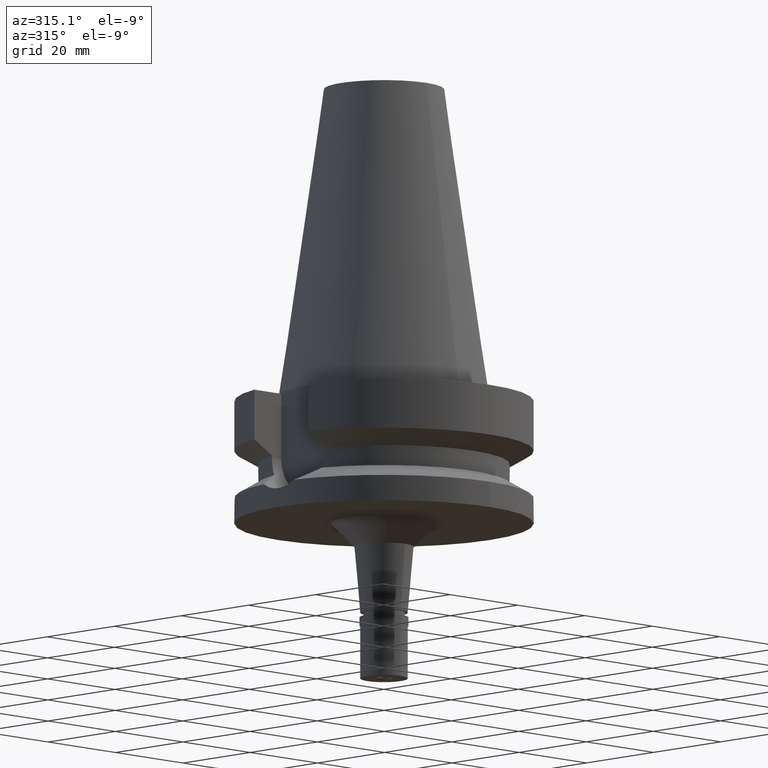
[diagram: clean part render]
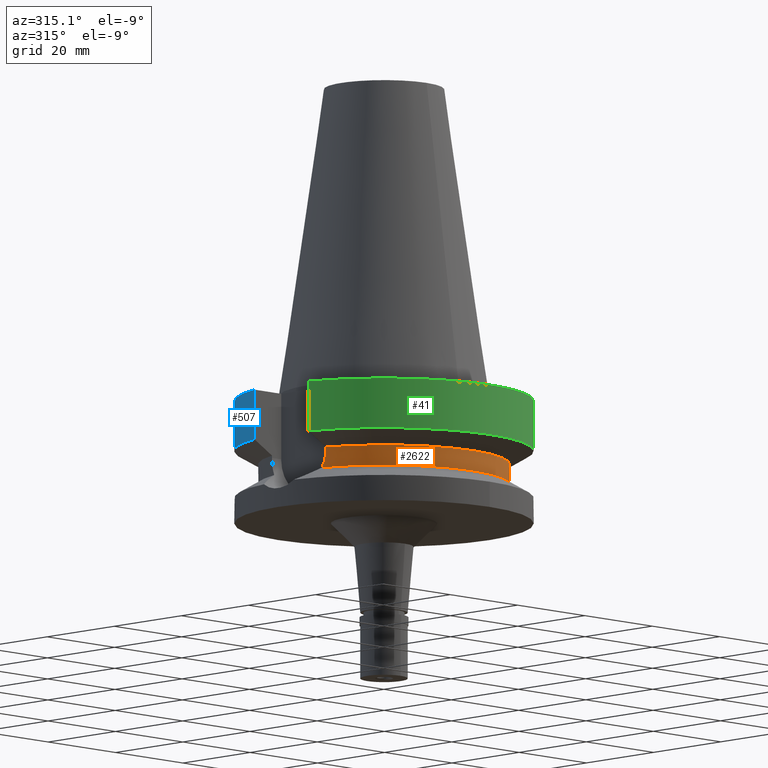
[diagram: same view with three faces highlighted in distinct colors, each labeled with its STEP entity id]
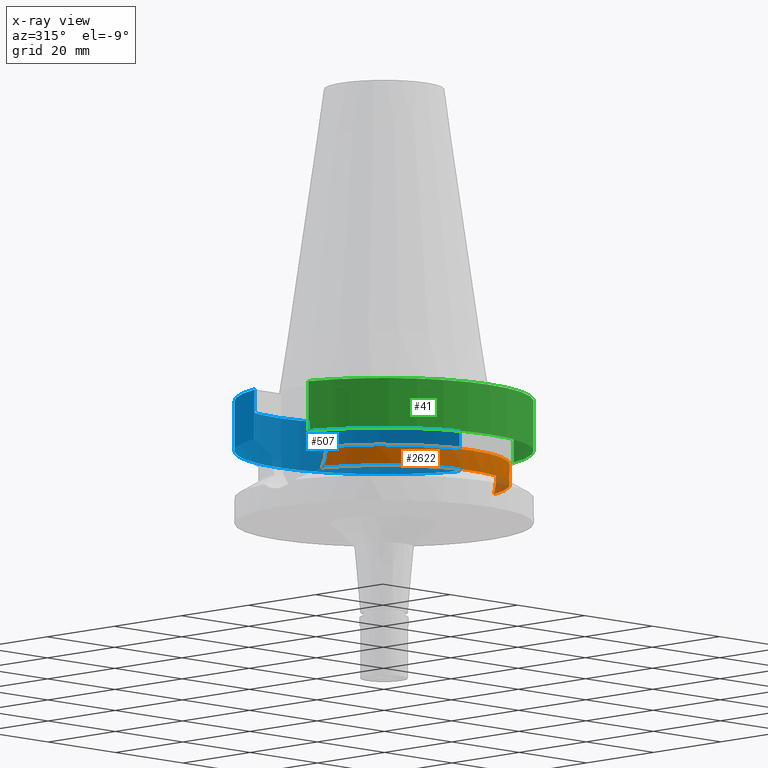
[diagram: x-ray of the same camera — body ghosted, the three highlighted faces saturated]
A machine part, auxiliary view with three faces highlighted in distinct colors.
The next image is the same camera in x-ray (body ghosted, the three faces saturated) — at least one of them is partly hidden behind the body in this view.
Their STEP definitions:

[orange] entity #2622 — the highlighted cylindrical surface (partial cylindrical patch) has radius 26.5 mm, axis along (0, 0, -1).
#70 = EDGE_CURVE ( 'NONE', #1491, #1785, #524, .T. ) ;
#82 = DIRECTION ( 'NONE',  ( 0.0000000000000000000, -1.000000000000000000, 0.0000000000000000000 ) ) ;
#154 = CARTESIAN_POINT ( 'NONE',  ( 25.24772266958000344, -8.050000000000000711, -15.26994624097755349 ) ) ;
#225 = AXIS2_PLACEMENT_3D ( 'NONE', #297, #1414, #82 ) ;
#253 = CARTESIAN_POINT ( 'NONE',  ( -25.35407699156058570, -7.708962562372580152, -17.26964265289514344 ) ) ;
#297 = CARTESIAN_POINT ( 'NONE',  ( 0.0000000000000000000, 2.100085563517999935E-14, 71.48500000000001364 ) ) ;
#409 = CARTESIAN_POINT ( 'NONE',  ( -25.27267878703948156, -7.973310748594792940, -16.24511349491563195 ) ) ;
#411 = ORIENTED_EDGE ( 'NONE', *, *, #660, .F. ) ;
#439 = EDGE_LOOP ( 'NONE', ( #1242, #1523, #2759, #411, #2555, #881 ) ) ;
#440 = CARTESIAN_POINT ( 'NONE',  ( -25.48480250143031967, -7.266743887089764264, -18.43210847756382620 ) ) ;
#457 = CARTESIAN_POINT ( 'NONE',  ( 25.24772266958000344, -8.050000000000000711, -14.94999999999999929 ) ) ;
#496 = EDGE_CURVE ( 'NONE', #2968, #2895, #2016, .T. ) ;
#524 = CIRCLE ( 'NONE', #2830, 26.50000000000000711 ) ;
#562 = CARTESIAN_POINT ( 'NONE',  ( 25.30213757442784583, -7.877637162976262708, -16.61056528398788146 ) ) ;
#633 = CARTESIAN_POINT ( 'NONE',  ( -25.34383784690667696, -7.742464100974354224, -17.15621186859764791 ) ) ;
#660 = EDGE_CURVE ( 'NONE', #1491, #2968, #1898, .T. ) ;
#698 = CARTESIAN_POINT ( 'NONE',  ( -25.39160756133994923, -7.584934398586919535, -17.65162641215484385 ) ) ;
#717 = VECTOR ( 'NONE', #2878, 1000.000000000000227 ) ;
#730 = CYLINDRICAL_SURFACE ( 'NONE', #225, 26.50000000000000000 ) ;
#766 = CARTESIAN_POINT ( 'NONE',  ( 25.24772217445000422, -8.050001552912998903, -14.45224513297999991 ) ) ;
#773 = VERTEX_POINT ( 'NONE', #1082 ) ;
#798 = CARTESIAN_POINT ( 'NONE',  ( 25.32119310062810058, -7.816055872880485644, -16.87669021872437369 ) ) ;
#872 = DIRECTION ( 'NONE',  ( 0.0000000000000000000, 0.0000000000000000000, -1.000000000000000000 ) ) ;
#881 = ORIENTED_EDGE ( 'NONE', *, *, #1126, .F. ) ;
#900 = CARTESIAN_POINT ( 'NONE',  ( -25.32840181445836336, -7.792653841590518660, -16.96926092298874877 ) ) ;
#1040 = CARTESIAN_POINT ( 'NONE',  ( 25.53175183775000079, -7.097862220092999941, -18.74774300138999905 ) ) ;
#1057 = CARTESIAN_POINT ( 'NONE',  ( 25.27268721373958726, -7.971796898703089163, -16.08126439256691498 ) ) ;
#1082 = CARTESIAN_POINT ( 'NONE',  ( -25.24772266958000344, -8.050000000000000711, -14.94999999999999929 ) ) ;
#1126 = EDGE_CURVE ( 'NONE', #773, #1785, #1153, .T. ) ;
#1153 = LINE ( 'NONE', #2064, #2006 ) ;
#1181 = B_SPLINE_CURVE_WITH_KNOTS ( 'NONE', 3,
 ( #1555, #440, #1350, #698, #2042, #253, #633, #2473, #900, #1804, #2519, #409, #2060, #2747 ),
 .UNSPECIFIED., .F., .F.,
 ( 4, 2, 2, 1, 1, 2, 2, 4 ),
 ( 0.0000000000000000000, 0.2499999999999841238, 0.3749999999999763522, 0.4374999999999725775, 0.4687499999999721889, 0.4843749999999718558, 0.4999999999999715783, 1.000000000000000000 ),
 .UNSPECIFIED. ) ;
#1217 = DIRECTION ( 'NONE',  ( 0.0000000000000000000, 0.0000000000000000000, 1.000000000000000000 ) ) ;
#1241 = CARTESIAN_POINT ( 'NONE',  ( 25.25396380561988607, -8.030903546329694720, -15.59366754601816574 ) ) ;
#1242 = ORIENTED_EDGE ( 'NONE', *, *, #2938, .F. ) ;
#1266 = CARTESIAN_POINT ( 'NONE',  ( 25.31952011347645737, -7.821476031042577048, -16.85458648997031617 ) ) ;
#1295 = CARTESIAN_POINT ( 'NONE',  ( -25.24772414535999943, -8.049995371426000190, -14.45229236698000008 ) ) ;
#1350 = CARTESIAN_POINT ( 'NONE',  ( -25.44389776528783997, -7.408340107185043877, -18.11686868422951591 ) ) ;
#1414 = DIRECTION ( 'NONE',  ( 0.0000000000000000000, 0.0000000000000000000, -1.000000000000000000 ) ) ;
#1416 = AXIS2_PLACEMENT_3D ( 'NONE', #2394, #1217, #2700 ) ;
#1461 = CARTESIAN_POINT ( 'NONE',  ( 25.28048863378946010, -7.947021833655625755, -16.24412758137958335 ) ) ;
#1491 = VERTEX_POINT ( 'NONE', #2741 ) ;
#1523 = ORIENTED_EDGE ( 'NONE', *, *, #2239, .T. ) ;
#1555 = CARTESIAN_POINT ( 'NONE',  ( -25.53175183775000079, -7.097862220092999941, -18.74774300138999905 ) ) ;
#1660 = CARTESIAN_POINT ( 'NONE',  ( 25.31649706320713733, -7.831262302060541636, -16.81393877535621328 ) ) ;
#1686 = CARTESIAN_POINT ( 'NONE',  ( 25.36815874783960467, -7.663791245765212423, -17.48814129335194067 ) ) ;
#1689 = CARTESIAN_POINT ( 'NONE',  ( 25.29453118987922267, -7.902064242066239252, -16.48842005630119445 ) ) ;
#1785 = VERTEX_POINT ( 'NONE', #1295 ) ;
#1804 = CARTESIAN_POINT ( 'NONE',  ( -25.32546100062923244, -7.802196480338689177, -16.93206928540737621 ) ) ;
#1898 = LINE ( 'NONE', #766, #717 ) ;
#2001 = DIRECTION ( 'NONE',  ( 0.9527442516822307583, -0.3037735849057093818, 0.0000000000000000000 ) ) ;
#2006 = VECTOR ( 'NONE', #2047, 1000.000000000000000 ) ;
#2016 = B_SPLINE_CURVE_WITH_KNOTS ( 'NONE', 3,
 ( #2219, #154, #1241, #1057, #1461, #1689, #562, #2891, #1660, #1266, #798, #1686, #2414, #1040 ),
 .UNSPECIFIED., .F., .F.,
 ( 4, 2, 2, 1, 1, 2, 2, 4 ),
 ( 0.0000000000000000000, 0.2500000000000033862, 0.3750000000000043299, 0.4375000000000048295, 0.4687500000000036637, 0.4843750000000031641, 0.5000000000000026645, 1.000000000000000000 ),
 .UNSPECIFIED. ) ;
#2042 = CARTESIAN_POINT ( 'NONE',  ( -25.37568864340162733, -7.637841086874976426, -17.49779646604959638 ) ) ;
#2047 = DIRECTION ( 'NONE',  ( -2.965147155132884913E-06, 9.299783980819640116E-06, 0.9999999999523609961 ) ) ;
#2060 = CARTESIAN_POINT ( 'NONE',  ( -25.24772266957999989, -8.049999999999979394, -15.58990582805522784 ) ) ;
#2064 = CARTESIAN_POINT ( 'NONE',  ( -25.24772266958000344, -8.050000000000000711, -14.94999999999999929 ) ) ;
#2112 = CARTESIAN_POINT ( 'NONE',  ( -25.53175183775000079, -7.097862220092999941, -18.74774300138999905 ) ) ;
#2219 = CARTESIAN_POINT ( 'NONE',  ( 25.24772266958000344, -8.050000000000000711, -14.94999999999999929 ) ) ;
#2239 = EDGE_CURVE ( 'NONE', #2571, #2895, #2722, .T. ) ;
#2273 = CARTESIAN_POINT ( 'NONE',  ( 0.0000000000000000000, 1.065333950388000029E-14, -14.45225699861000024 ) ) ;
#2347 = FACE_OUTER_BOUND ( 'NONE', #439, .T. ) ;
#2394 = CARTESIAN_POINT ( 'NONE',  ( 0.0000000000000000000, 0.0000000000000000000, -18.74774300138999905 ) ) ;
#2414 = CARTESIAN_POINT ( 'NONE',  ( 25.43787059307001641, -7.435562863904584319, -18.11659111971998115 ) ) ;
#2473 = CARTESIAN_POINT ( 'NONE',  ( -25.33288387036036582, -7.778102131033523214, -17.02514599129639095 ) ) ;
#2519 = CARTESIAN_POINT ( 'NONE',  ( -25.32415077929965719, -7.806445795312396463, -16.91528421260447601 ) ) ;
#2555 = ORIENTED_EDGE ( 'NONE', *, *, #70, .T. ) ;
#2571 = VERTEX_POINT ( 'NONE', #2112 ) ;
#2622 = ADVANCED_FACE ( 'NONE', ( #2347 ), #730, .T. ) ;
#2700 = DIRECTION ( 'NONE',  ( -0.9634623335000935818, -0.2678438573619981722, 0.0000000000000000000 ) ) ;
#2722 = CIRCLE ( 'NONE', #1416, 26.49999999999998224 ) ;
#2741 = CARTESIAN_POINT ( 'NONE',  ( 25.24772266958000344, -8.050000000000000711, -14.45225699861000024 ) ) ;
#2747 = CARTESIAN_POINT ( 'NONE',  ( -25.24772266958000344, -8.050000000000000711, -14.94999999999999929 ) ) ;
#2759 = ORIENTED_EDGE ( 'NONE', *, *, #496, .F. ) ;
#2830 = AXIS2_PLACEMENT_3D ( 'NONE', #2273, #872, #2001 ) ;
#2878 = DIRECTION ( 'NONE',  ( 9.947298043668392670E-07, 3.119835698421120934E-06, -0.9999999999946385110 ) ) ;
#2891 = CARTESIAN_POINT ( 'NONE',  ( 25.31203562611612057, -7.845693926034295274, -16.75295273484678660 ) ) ;
#2895 = VERTEX_POINT ( 'NONE', #2970 ) ;
#2938 = EDGE_CURVE ( 'NONE', #2571, #773, #1181, .T. ) ;
#2968 = VERTEX_POINT ( 'NONE', #457 ) ;
#2970 = CARTESIAN_POINT ( 'NONE',  ( 25.53175183775000079, -7.097862220092999941, -18.74774300138999905 ) ) ;

[blue] entity #507 — the highlighted cylindrical surface (partial cylindrical patch) has radius 31.5 mm, axis along (0, 0, -1).
#136 = DIRECTION ( 'NONE',  ( 0.0000000000000000000, 1.000000000000000000, 0.0000000000000000000 ) ) ;
#140 = FACE_OUTER_BOUND ( 'NONE', #1224, .T. ) ;
#166 = VERTEX_POINT ( 'NONE', #655 ) ;
#261 = EDGE_CURVE ( 'NONE', #1161, #1903, #2048, .T. ) ;
#288 = VECTOR ( 'NONE', #2302, 1000.000000000000000 ) ;
#347 = CYLINDRICAL_SURFACE ( 'NONE', #1801, 31.50000000000000000 ) ;
#356 = ORIENTED_EDGE ( 'NONE', *, *, #1495, .F. ) ;
#498 = LINE ( 'NONE', #678, #1210 ) ;
#507 = ADVANCED_FACE ( 'NONE', ( #140 ), #347, .T. ) ;
#530 = CARTESIAN_POINT ( 'NONE',  ( 0.0000000000000000000, 2.100085563517999935E-14, 71.48500000000001364 ) ) ;
#655 = CARTESIAN_POINT ( 'NONE',  ( -30.45402162036999982, 8.050004170549000193, -11.56546808615000010 ) ) ;
#678 = CARTESIAN_POINT ( 'NONE',  ( -30.45402272279000044, 8.050000000000000711, -1.000000000000000000 ) ) ;
#838 = CIRCLE ( 'NONE', #2861, 31.50000000000000000 ) ;
#1120 = VERTEX_POINT ( 'NONE', #1388 ) ;
#1132 = DIRECTION ( 'NONE',  ( 0.0000000000000000000, 0.0000000000000000000, 1.000000000000000000 ) ) ;
#1161 = VERTEX_POINT ( 'NONE', #1167 ) ;
#1167 = CARTESIAN_POINT ( 'NONE',  ( 30.45402291803999972, 8.049999261355999636, -11.56551230548000042 ) ) ;
#1210 = VECTOR ( 'NONE', #2773, 1000.000000000000000 ) ;
#1224 = EDGE_LOOP ( 'NONE', ( #356, #2253, #2451, #1315 ) ) ;
#1231 = DIRECTION ( 'NONE',  ( 0.0000000000000000000, 0.0000000000000000000, -1.000000000000000000 ) ) ;
#1246 = CARTESIAN_POINT ( 'NONE',  ( 0.0000000000000000000, 2.100085563517999935E-14, -1.000000000000000000 ) ) ;
#1315 = ORIENTED_EDGE ( 'NONE', *, *, #1936, .T. ) ;
#1361 = AXIS2_PLACEMENT_3D ( 'NONE', #1816, #1132, #2120 ) ;
#1372 = CARTESIAN_POINT ( 'NONE',  ( 30.45402291803999972, 8.049999261355999636, -11.56551230548000042 ) ) ;
#1388 = CARTESIAN_POINT ( 'NONE',  ( -30.45402272279000044, 8.050000000000000711, -1.000000000000000000 ) ) ;
#1459 = CIRCLE ( 'NONE', #1361, 31.50000000000000000 ) ;
#1495 = EDGE_CURVE ( 'NONE', #1120, #166, #498, .T. ) ;
#1801 = AXIS2_PLACEMENT_3D ( 'NONE', #530, #2595, #2634 ) ;
#1816 = CARTESIAN_POINT ( 'NONE',  ( 0.0000000000000000000, 1.065333950388000029E-14, -11.56550565266999975 ) ) ;
#1828 = CARTESIAN_POINT ( 'NONE',  ( 30.45402272279000044, 8.050000000000000711, -1.000000000000000000 ) ) ;
#1903 = VERTEX_POINT ( 'NONE', #1828 ) ;
#1936 = EDGE_CURVE ( 'NONE', #1161, #166, #1459, .T. ) ;
#2048 = LINE ( 'NONE', #1372, #288 ) ;
#2120 = DIRECTION ( 'NONE',  ( 0.0000000000000000000, 1.000000000000000000, 0.0000000000000000000 ) ) ;
#2165 = EDGE_CURVE ( 'NONE', #1120, #1903, #838, .T. ) ;
#2253 = ORIENTED_EDGE ( 'NONE', *, *, #2165, .T. ) ;
#2302 = DIRECTION ( 'NONE',  ( -1.847968020044990156E-08, 6.991087438292962207E-08, 0.9999999999999973355 ) ) ;
#2451 = ORIENTED_EDGE ( 'NONE', *, *, #261, .F. ) ;
#2595 = DIRECTION ( 'NONE',  ( 0.0000000000000000000, 0.0000000000000000000, -1.000000000000000000 ) ) ;
#2634 = DIRECTION ( 'NONE',  ( 0.0000000000000000000, -1.000000000000000000, 0.0000000000000000000 ) ) ;
#2773 = DIRECTION ( 'NONE',  ( 1.043413262172015476E-07, 3.947340097117063834E-07, -0.9999999999999166223 ) ) ;
#2861 = AXIS2_PLACEMENT_3D ( 'NONE', #1246, #1231, #136 ) ;

[green] entity #41 — the highlighted cylindrical surface (partial cylindrical patch) has radius 31.5 mm, axis along (0, 0, -1).
#40 = CIRCLE ( 'NONE', #609, 31.50000000000000000 ) ;
#41 = ADVANCED_FACE ( 'NONE', ( #115 ), #1712, .T. ) ;
#56 = VERTEX_POINT ( 'NONE', #319 ) ;
#115 = FACE_OUTER_BOUND ( 'NONE', #2896, .T. ) ;
#186 = CARTESIAN_POINT ( 'NONE',  ( 0.0000000000000000000, 2.100085563517999935E-14, -1.000000000000000000 ) ) ;
#206 = DIRECTION ( 'NONE',  ( 0.0000000000000000000, -1.000000000000000000, 0.0000000000000000000 ) ) ;
#233 = ORIENTED_EDGE ( 'NONE', *, *, #2553, .T. ) ;
#294 = VECTOR ( 'NONE', #2079, 1000.000000000000000 ) ;
#319 = CARTESIAN_POINT ( 'NONE',  ( -30.45402272279000044, -8.050000000000000711, -1.000000000000000000 ) ) ;
#355 = VERTEX_POINT ( 'NONE', #2598 ) ;
#424 = AXIS2_PLACEMENT_3D ( 'NONE', #2642, #2420, #206 ) ;
#459 = ORIENTED_EDGE ( 'NONE', *, *, #2939, .T. ) ;
#513 = CARTESIAN_POINT ( 'NONE',  ( 30.45402272279000044, -8.050000000000000711, -1.000000000000000000 ) ) ;
#609 = AXIS2_PLACEMENT_3D ( 'NONE', #186, #2012, #2937 ) ;
#972 = LINE ( 'NONE', #513, #1596 ) ;
#975 = CIRCLE ( 'NONE', #2867, 31.50000000000000000 ) ;
#981 = DIRECTION ( 'NONE',  ( 0.0000000000000000000, -1.000000000000000000, 0.0000000000000000000 ) ) ;
#1145 = EDGE_CURVE ( 'NONE', #355, #56, #2318, .T. ) ;
#1371 = CARTESIAN_POINT ( 'NONE',  ( -30.45402291795999972, -8.049999261623998592, -11.56551230306000022 ) ) ;
#1504 = VERTEX_POINT ( 'NONE', #1579 ) ;
#1542 = EDGE_CURVE ( 'NONE', #1504, #1589, #972, .T. ) ;
#1579 = CARTESIAN_POINT ( 'NONE',  ( 30.45402272279000044, -8.050000000000000711, -1.000000000000000000 ) ) ;
#1589 = VERTEX_POINT ( 'NONE', #2826 ) ;
#1596 = VECTOR ( 'NONE', #2354, 1000.000000000000114 ) ;
#1646 = DIRECTION ( 'NONE',  ( 0.0000000000000000000, 0.0000000000000000000, 1.000000000000000000 ) ) ;
#1663 = CARTESIAN_POINT ( 'NONE',  ( 0.0000000000000000000, 1.065333950388000029E-14, -11.56550565266999975 ) ) ;
#1712 = CYLINDRICAL_SURFACE ( 'NONE', #424, 31.50000000000000000 ) ;
#1735 = ORIENTED_EDGE ( 'NONE', *, *, #1145, .F. ) ;
#2012 = DIRECTION ( 'NONE',  ( 0.0000000000000000000, 0.0000000000000000000, -1.000000000000000000 ) ) ;
#2079 = DIRECTION ( 'NONE',  ( 1.847296719598990004E-08, -6.988547414812961712E-08, 0.9999999999999973355 ) ) ;
#2318 = LINE ( 'NONE', #1371, #294 ) ;
#2345 = ORIENTED_EDGE ( 'NONE', *, *, #1542, .F. ) ;
#2354 = DIRECTION ( 'NONE',  ( -1.044098452343015424E-07, -3.949932234999063090E-07, -0.9999999999999165112 ) ) ;
#2420 = DIRECTION ( 'NONE',  ( 0.0000000000000000000, 0.0000000000000000000, -1.000000000000000000 ) ) ;
#2553 = EDGE_CURVE ( 'NONE', #355, #1589, #975, .T. ) ;
#2598 = CARTESIAN_POINT ( 'NONE',  ( -30.45402291795999972, -8.049999261623998592, -11.56551230306000022 ) ) ;
#2642 = CARTESIAN_POINT ( 'NONE',  ( 0.0000000000000000000, 2.100085563517999935E-14, 71.48500000000001364 ) ) ;
#2826 = CARTESIAN_POINT ( 'NONE',  ( 30.45402272279000044, -8.049999999999000622, -11.56550565266999975 ) ) ;
#2867 = AXIS2_PLACEMENT_3D ( 'NONE', #1663, #1646, #981 ) ;
#2896 = EDGE_LOOP ( 'NONE', ( #1735, #233, #2345, #459 ) ) ;
#2937 = DIRECTION ( 'NONE',  ( 0.0000000000000000000, -1.000000000000000000, 0.0000000000000000000 ) ) ;
#2939 = EDGE_CURVE ( 'NONE', #1504, #56, #40, .T. ) ;